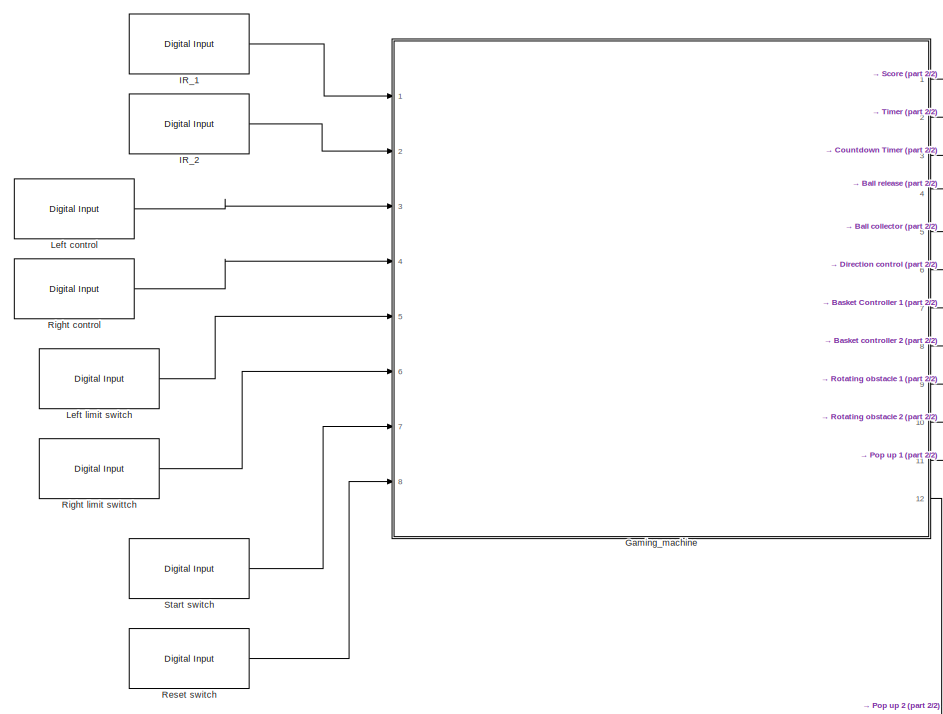
[diagram: root canvas - part 1/2, left side, full height]
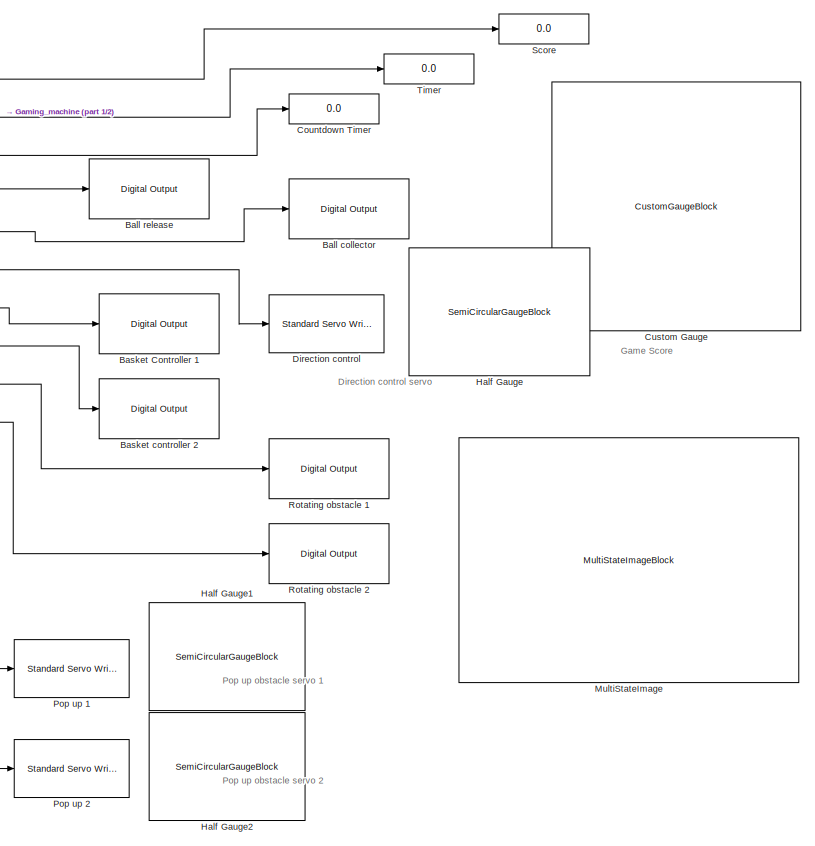
[diagram: root canvas - part 2/2, right side, full height]
MODEL slx_f82b41cc123f
KIND model
CONFIG AbsTol = auto
CONFIG EnableMultiTasking = off
CONFIG FixedStep = auto
CONFIG MaxStep = auto
CONFIG MinStep = auto
CONFIG RelTol = 1e-3
CONFIG SampleTimeConstraint = Unconstrained
CONFIG Solver = VariableStepAuto
CONFIG SolverName = VariableStepAuto
CONFIG StartTime = 0.0
CONFIG StopTime = 10.0
BLOCK [Reference] Ball collector  REF=arduinolib/Digital Output
  Ports = [1]
  SourceBlock = arduinolib/Digital Output
  SourceProductBaseCode = ARDUINO
  SourceProductName = Simulink Support Package for Arduino Hardware
  SourceType = Arduino Digital Output
BLOCK [Reference] Ball release  REF=arduinolib/Digital Output
  Ports = [1]
  SourceBlock = arduinolib/Digital Output
  SourceProductBaseCode = ARDUINO
  SourceProductName = Simulink Support Package for Arduino Hardware
  SourceType = Arduino Digital Output
BLOCK [Reference] Basket Controller 1  REF=arduinolib/Digital Output
  Ports = [1]
  SourceBlock = arduinolib/Digital Output
  SourceProductBaseCode = ARDUINO
  SourceProductName = Simulink Support Package for Arduino Hardware
  SourceType = Arduino Digital Output
BLOCK [Reference] Basket controller 2  REF=arduinolib/Digital Output
  Ports = [1]
  SourceBlock = arduinolib/Digital Output
  SourceProductBaseCode = ARDUINO
  SourceProductName = Simulink Support Package for Arduino Hardware
  SourceType = Arduino Digital Output
BLOCK [Display] Countdown Timer
  Decimation = 1
  Ports = [1]
BLOCK [CustomGaugeBlock] Custom Gauge
  BackgroundImage = data:image/svg+xml;base64,PD94bWwgdmVyc2lvbj0iMS4wIiBlbmNvZGluZz0iVVRGLTgiIHN0YW5kYWxvbmU9Im5vIj8+CjwhLS0gR2VuZXJhdG9yOiBBZG9iZSBJbGx1c3RyYXRvciAxOS4yLjEsIFNWRyBFeHBvcnQgUGx1Zy1JbiAuIFNWRyBWZXJzaW9uOiA2LjAwIEJ1aWxkIDApICAtLT4KCjxzdmcKICAgeG1sbnM6ZGM9Imh0dHA6Ly9wdXJsLm9yZy9kYy9lbGVtZW50cy8xLjEvIgogICB4bWxuczpjYz0iaHR0cDovL2NyZWF0aXZlY29tbW9ucy5vcmcvbnMjIgogICB4bWxuczpyZGY9Imh0dHA6Ly93d3cudzMub3JnLz...<+9686ch>
  GaugeArcDefined = true
  GaugeArcRadius = 0.1358563990074277
  GaugeArcRatio = 0.8333333333333
  GaugeArcRotation = 240.5385250290321
  GaugeArcStrokeWidth = 0.03972965542329953
  GaugeArcTransparency = 0
  GaugeMax = 1000
  GaugeTickColor = #faf5c8
  NeedleHeight = 0.11602152693163792
  NeedleImage = data:image/svg+xml;base64,PD94bWwgdmVyc2lvbj0iMS4wIiBlbmNvZGluZz0idXRmLTgiPz4KPCEtLSBHZW5lcmF0b3I6IEFkb2JlIElsbHVzdHJhdG9yIDE5LjIuMSwgU1ZHIEV4cG9ydCBQbHVnLUluIC4gU1ZHIFZlcnNpb246IDYuMDAgQnVpbGQgMCkgIC0tPgo8c3ZnIHZlcnNpb249IjEuMSIgeG1sbnM9Imh0dHA6Ly93d3cudzMub3JnLzIwMDAvc3ZnIiB4bWxuczp4bGluaz0iaHR0cDovL3d3dy53My5vcmcvMTk5OS94bGluayIgeD0iMHB4IiB5PSIwcHgiCgkgdmlld0JveD0iMCAwIDIwMCA1MCIgc3R5bGU9ImVuYW...<+9966ch>
  NeedleInitialRotation = -59.94322499147643
  NeedleWidth = 0.1911368983686954
  NeedleXPos = 0.3802298124325669
  NeedleYPos = 0.48117305677424654
  ScaleColorsJSON = []
  TickInterval = 200
  ValueArcColor = #1759b0
  fixedAspectRatio = on
BLOCK [Reference] Direction control  REF=arduinolib/Standard Servo Write
  Ports = [1]
  SourceBlock = arduinolib/Standard Servo Write
  SourceProductBaseCode = ARDUINO
  SourceProductName = Simulink Support Package for Arduino Hardware
  SourceType = Arduino Standard Servo Write
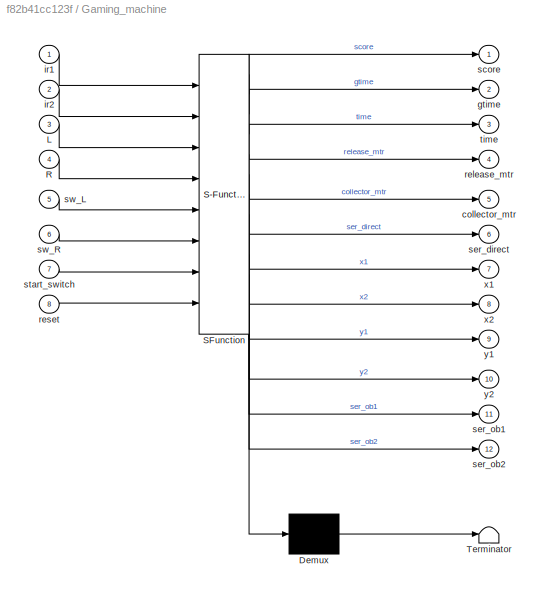
BLOCK [SubSystem] Gaming_machine
  BlockKeywords = __PRM__SERIALIZED__DATA__:Stateflow Chart,Stateflow Diagram
  ErrorFcn = Stateflow.Translate.translate
  PermitHierarchicalResolution = ExplicitOnly
  Ports = [8, 12]
  RequestExecContextInheritance = off
  SFBlockType = Chart
  TreatAsAtomicUnit = on
BLOCK [Demux] Gaming_machine/ Demux 
  Outputs = 1
  Ports = [1, 1]
BLOCK [S-Function] Gaming_machine/ SFunction 
  EnableBusSupport = on
  FunctionName = sf_sfun
  PortCounts = [8 13]
  Ports = [8, 13]
  SFcnIsStateOwnerBlock = off
  SFunctionDeploymentMode = off
  Tag = Stateflow S-Function Catch_the_ball_gaming_machine 3
BLOCK [Terminator] Gaming_machine/ Terminator 
BLOCK [Inport] Gaming_machine/L
  IconDisplay = Port number
  Port = 3
BLOCK [Inport] Gaming_machine/R
  IconDisplay = Port number
  Port = 4
BLOCK [Outport] Gaming_machine/collector_mtr
  IconDisplay = Port number
  Port = 5
BLOCK [Outport] Gaming_machine/gtime
  IconDisplay = Port number
  Port = 2
BLOCK [Inport] Gaming_machine/ir1
  IconDisplay = Port number
BLOCK [Inport] Gaming_machine/ir2
  IconDisplay = Port number
  Port = 2
BLOCK [Outport] Gaming_machine/release_mtr
  IconDisplay = Port number
  Port = 4
BLOCK [Inport] Gaming_machine/reset
  IconDisplay = Port number
  Port = 8
BLOCK [Outport] Gaming_machine/score
  IconDisplay = Port number
BLOCK [Outport] Gaming_machine/ser_direct
  IconDisplay = Port number
  Port = 6
BLOCK [Outport] Gaming_machine/ser_ob1
  IconDisplay = Port number
  Port = 11
BLOCK [Outport] Gaming_machine/ser_ob2
  IconDisplay = Port number
  Port = 12
BLOCK [Inport] Gaming_machine/start_switch
  IconDisplay = Port number
  Port = 7
BLOCK [Inport] Gaming_machine/sw_L
  IconDisplay = Port number
  Port = 5
BLOCK [Inport] Gaming_machine/sw_R
  IconDisplay = Port number
  Port = 6
BLOCK [Outport] Gaming_machine/time
  IconDisplay = Port number
  Port = 3
BLOCK [Outport] Gaming_machine/x1
  IconDisplay = Port number
  Port = 7
BLOCK [Outport] Gaming_machine/x2
  IconDisplay = Port number
  Port = 8
BLOCK [Outport] Gaming_machine/y1
  IconDisplay = Port number
  Port = 9
BLOCK [Outport] Gaming_machine/y2
  IconDisplay = Port number
  Port = 10
BLOCK [SemiCircularGaugeBlock] Half Gauge
  ScaleMax = 180
  TickInterval = 30
BLOCK [SemiCircularGaugeBlock] Half Gauge1
  ScaleMax = 180
  TickInterval = 30
BLOCK [SemiCircularGaugeBlock] Half Gauge2
  ScaleMax = 180
  TickInterval = 30
BLOCK [Reference] IR_1  REF=arduinolib/Digital Input
  Ports = [0, 1]
  SourceBlock = arduinolib/Digital Input
  SourceProductBaseCode = ARDUINO
  SourceProductName = Simulink Support Package for Arduino Hardware
  SourceType = Arduino Digital Input
BLOCK [Reference] IR_2  REF=arduinolib/Digital Input
  Ports = [0, 1]
  SourceBlock = arduinolib/Digital Input
  SourceProductBaseCode = ARDUINO
  SourceProductName = Simulink Support Package for Arduino Hardware
  SourceType = Arduino Digital Input
BLOCK [Reference] Left control  REF=arduinolib/Digital Input
  Ports = [0, 1]
  SourceBlock = arduinolib/Digital Input
  SourceProductBaseCode = ARDUINO
  SourceProductName = Simulink Support Package for Arduino Hardware
  SourceType = Arduino Digital Input
BLOCK [Reference] Left limit switch  REF=arduinolib/Digital Input
  Ports = [0, 1]
  SourceBlock = arduinolib/Digital Input
  SourceProductBaseCode = ARDUINO
  SourceProductName = Simulink Support Package for Arduino Hardware
  SourceType = Arduino Digital Input
BLOCK [MultiStateImageBlock] MultiStateImage
BLOCK [Reference] Pop up 1  REF=arduinolib/Standard Servo Write
  Ports = [1]
  SourceBlock = arduinolib/Standard Servo Write
  SourceProductBaseCode = ARDUINO
  SourceProductName = Simulink Support Package for Arduino Hardware
  SourceType = Arduino Standard Servo Write
BLOCK [Reference] Pop up 2  REF=arduinolib/Standard Servo Write
  Ports = [1]
  SourceBlock = arduinolib/Standard Servo Write
  SourceProductBaseCode = ARDUINO
  SourceProductName = Simulink Support Package for Arduino Hardware
  SourceType = Arduino Standard Servo Write
BLOCK [Reference] Reset switch  REF=arduinolib/Digital Input
  Ports = [0, 1]
  SourceBlock = arduinolib/Digital Input
  SourceProductBaseCode = ARDUINO
  SourceProductName = Simulink Support Package for Arduino Hardware
  SourceType = Arduino Digital Input
BLOCK [Reference] Right control  REF=arduinolib/Digital Input
  Ports = [0, 1]
  SourceBlock = arduinolib/Digital Input
  SourceProductBaseCode = ARDUINO
  SourceProductName = Simulink Support Package for Arduino Hardware
  SourceType = Arduino Digital Input
BLOCK [Reference] Right limit swittch  REF=arduinolib/Digital Input
  Ports = [0, 1]
  SourceBlock = arduinolib/Digital Input
  SourceProductBaseCode = ARDUINO
  SourceProductName = Simulink Support Package for Arduino Hardware
  SourceType = Arduino Digital Input
BLOCK [Reference] Rotating obstacle 1  REF=arduinolib/Digital Output
  Ports = [1]
  SourceBlock = arduinolib/Digital Output
  SourceProductBaseCode = ARDUINO
  SourceProductName = Simulink Support Package for Arduino Hardware
  SourceType = Arduino Digital Output
BLOCK [Reference] Rotating obstacle 2  REF=arduinolib/Digital Output
  Ports = [1]
  SourceBlock = arduinolib/Digital Output
  SourceProductBaseCode = ARDUINO
  SourceProductName = Simulink Support Package for Arduino Hardware
  SourceType = Arduino Digital Output
BLOCK [Display] Score
  Decimation = 1
  Ports = [1]
BLOCK [Reference] Start switch  REF=arduinolib/Digital Input
  Ports = [0, 1]
  SourceBlock = arduinolib/Digital Input
  SourceProductBaseCode = ARDUINO
  SourceProductName = Simulink Support Package for Arduino Hardware
  SourceType = Arduino Digital Input
BLOCK [Display] Timer
  Decimation = 1
  Ports = [1]
ANNOTATION (root): Direction control servo
ANNOTATION (root): Game Score
ANNOTATION (root): Pop up obstacle servo 1
ANNOTATION (root): Pop up obstacle servo 2
LINE Gaming_machine:1 -> Score:1
LINE Gaming_machine:10 -> Rotating obstacle 2:1
LINE Gaming_machine:11 -> Pop up 1:1
LINE Gaming_machine:12 -> Pop up 2:1
LINE Gaming_machine:2 -> Timer:1
LINE Gaming_machine:3 -> Countdown Timer:1
LINE Gaming_machine:4 -> Ball release:1
LINE Gaming_machine:5 -> Ball collector:1
LINE Gaming_machine:6 -> Direction control:1
LINE Gaming_machine:7 -> Basket Controller 1:1
LINE Gaming_machine:8 -> Basket controller 2:1
LINE Gaming_machine:9 -> Rotating obstacle 1:1
LINE IR_1:1 -> Gaming_machine:1
LINE IR_2:1 -> Gaming_machine:2
LINE Left control:1 -> Gaming_machine:3
LINE Left limit switch:1 -> Gaming_machine:5
LINE Reset switch:1 -> Gaming_machine:8
LINE Right control:1 -> Gaming_machine:4
LINE Right limit swittch:1 -> Gaming_machine:6
LINE Start switch:1 -> Gaming_machine:7
CHART Gaming_machine states=30 transitions=41
  STATE_LABEL 'Game_ON\n\ncollector_mtr=1;\nrelease_mtr=1;'
  STATE_LABEL 'Game_time'
  STATE_LABEL 'Time1\n\ngtime=gtime;'
  STATE_LABEL 'Time2\n\ngtime=gtime;'
  STATE_LABEL '[after(1,sec)&&gtime>0]{gtime = gtime - 1}'
  STATE_LABEL '[after(1,sec)&&gtime>0]{gtime = gtime - 1}'
  STATE_LABEL 'Scoring'
  STATE_LABEL 'default\nscore=0;'
  STATE_LABEL 'dummy1\n\nscore=score;'
  STATE_LABEL 'dummy2\n\nscore=score;'
  STATE_LABEL '[ir1==1||ir2==1]{score=score+10}'
  STATE_LABEL '[after(200,msec)]'
  STATE_LABEL 'Direction_control\n'
  STATE_LABEL 'Servo_movement1\n\nser_direct=ser_direct;'
  STATE_LABEL 'Servo_movement2\n\nser_direct=ser_direct;'
  STATE_LABEL '[after(50,msec)&&ser_direct<170]{ser_direct = ser_direct + 1}'
  STATE_LABEL '[ser_direct==170]'
  STATE_LABEL '[ser_direct==10]'
  STATE_LABEL '[after(50,msec)&&ser_direct>10]{ser_direct = ser_direct - 1}'
  STATE_LABEL 'Obstacle_rotating\n\n'
  STATE_LABEL 'Initial\n\ny1=0;\ny2=0;'
  STATE_LABEL 'State_changer\n\nrandom=randi(10);'
  STATE_LABEL 'State1\n\ny1=1;\ny2=0;'
  STATE_LABEL 'State2\n\ny1=0;\ny2=1;'
  STATE_LABEL '[random<=5]'
  STATE_LABEL '[after(5,sec)]'
  STATE_LABEL '[after(5,sec)]'
  STATE_LABEL '[random>5]'
  STATE_LABEL 'Basket_movement'
  STATE_LABEL 'Rest\nx1=0;\nx2=0;'
  STATE_LABEL 'Right_movement\n\nx1=0;\nx2=1;'
  STATE_LABEL 'Left_movement\n\nx1=1;\nx2=0;'
  STATE_LABEL '[(L==0&&R==0)||(sw_L==1&&sw_R==0)]'
  STATE_LABEL '[L==1&&R==0]'
  STATE_LABEL '[R==1&&L==0]'
  STATE_LABEL '[(R==0&&L==0)||(sw_R==1&&sw_L==0)]'
  STATE_LABEL '[L==0&&R==1]'
  STATE_LABEL '[L==1&&R==0]'
  STATE_LABEL 'Obstacle_popup\n\n'
  STATE_LABEL 'Initial \n\nt=60;'
